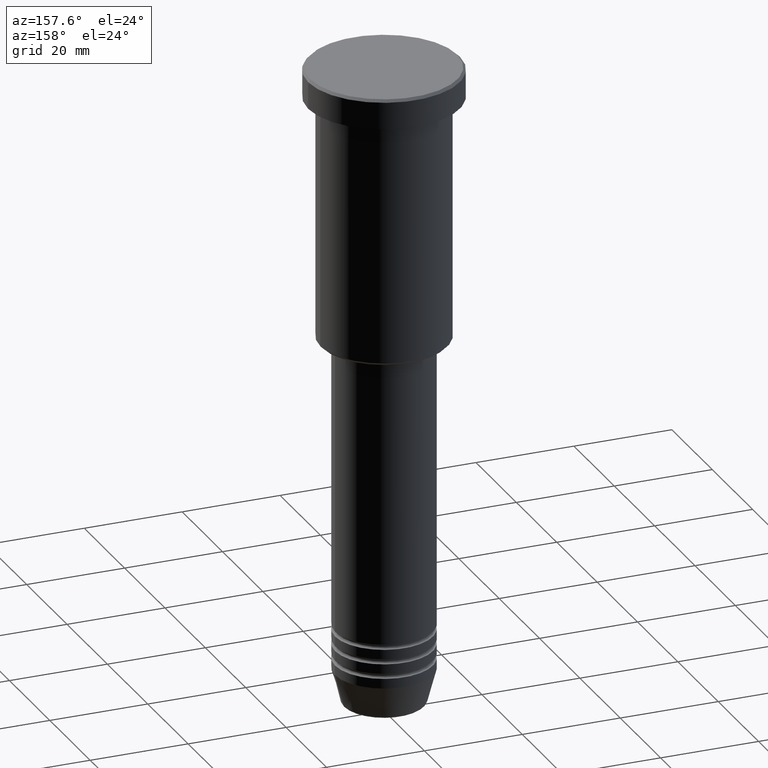
[diagram: clean part render]
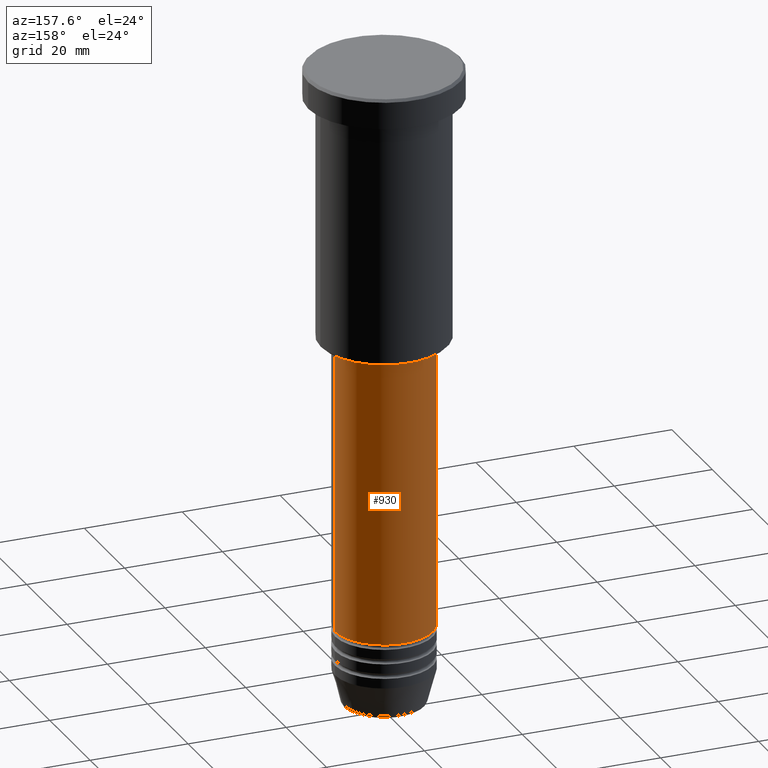
[diagram: same view with one face highlighted and labeled with its STEP entity id]
A machine part, auxiliary view. The second image highlights one B-rep face of the part: STEP entity #930.
In plain terms, the highlighted cylindrical surface (partial cylindrical patch) has radius 10 mm, axis along (-0, -0, 1).
Its self-contained STEP definition (entity closure, byte-faithful):
#14 = CARTESIAN_POINT ( 'NONE',  ( -10.00000000000000000, 1.224646799147353256E-15, -57.00000000000000000 ) ) ;
#30 = DIRECTION ( 'NONE',  ( -0.000000000000000000, -0.000000000000000000, 1.000000000000000000 ) ) ;
#85 = LINE ( 'NONE', #193, #888 ) ;
#107 = DIRECTION ( 'NONE',  ( 1.000000000000000000, 0.000000000000000000, 0.000000000000000000 ) ) ;
#117 = ORIENTED_EDGE ( 'NONE', *, *, #957, .F. ) ;
#124 = EDGE_LOOP ( 'NONE', ( #303, #361, #117, #487 ) ) ;
#193 = CARTESIAN_POINT ( 'NONE',  ( -10.00000000000000000, 1.224646799147353256E-15, 0.000000000000000000 ) ) ;
#198 = EDGE_CURVE ( 'NONE', #518, #300, #901, .T. ) ;
#204 = CYLINDRICAL_SURFACE ( 'NONE', #388, 10.00000000000000000 ) ;
#235 = VERTEX_POINT ( 'NONE', #14 ) ;
#294 = CARTESIAN_POINT ( 'NONE',  ( 0.000000000000000000, 0.000000000000000000, -114.9999999999999574 ) ) ;
#300 = VERTEX_POINT ( 'NONE', #591 ) ;
#303 = ORIENTED_EDGE ( 'NONE', *, *, #198, .T. ) ;
#307 = CIRCLE ( 'NONE', #767, 10.00000000000000000 ) ;
#348 = CARTESIAN_POINT ( 'NONE',  ( 10.00000000000000000, 0.000000000000000000, -114.9999999999999574 ) ) ;
#361 = ORIENTED_EDGE ( 'NONE', *, *, #1152, .T. ) ;
#388 = AXIS2_PLACEMENT_3D ( 'NONE', #1055, #397, #413 ) ;
#397 = DIRECTION ( 'NONE',  ( -0.000000000000000000, -0.000000000000000000, 1.000000000000000000 ) ) ;
#413 = DIRECTION ( 'NONE',  ( 1.000000000000000000, 0.000000000000000000, 0.000000000000000000 ) ) ;
#442 = DIRECTION ( 'NONE',  ( -0.000000000000000000, -0.000000000000000000, 1.000000000000000000 ) ) ;
#487 = ORIENTED_EDGE ( 'NONE', *, *, #1048, .F. ) ;
#494 = DIRECTION ( 'NONE',  ( -0.000000000000000000, -0.000000000000000000, 1.000000000000000000 ) ) ;
#518 = VERTEX_POINT ( 'NONE', #348 ) ;
#530 = CARTESIAN_POINT ( 'NONE',  ( 10.00000000000000000, 0.000000000000000000, -57.00000000000000000 ) ) ;
#543 = VERTEX_POINT ( 'NONE', #530 ) ;
#583 = LINE ( 'NONE', #843, #1103 ) ;
#591 = CARTESIAN_POINT ( 'NONE',  ( -10.00000000000000000, 1.224646799147353256E-15, -114.9999999999999574 ) ) ;
#758 = FACE_OUTER_BOUND ( 'NONE', #124, .T. ) ;
#767 = AXIS2_PLACEMENT_3D ( 'NONE', #1049, #494, #1121 ) ;
#832 = DIRECTION ( 'NONE',  ( -0.000000000000000000, -0.000000000000000000, 1.000000000000000000 ) ) ;
#843 = CARTESIAN_POINT ( 'NONE',  ( 10.00000000000000000, 0.000000000000000000, 0.000000000000000000 ) ) ;
#888 = VECTOR ( 'NONE', #442, 1000.000000000000000 ) ;
#901 = CIRCLE ( 'NONE', #1134, 10.00000000000000000 ) ;
#930 = ADVANCED_FACE ( 'NONE', ( #758 ), #204, .T. ) ;
#957 = EDGE_CURVE ( 'NONE', #543, #235, #307, .T. ) ;
#1048 = EDGE_CURVE ( 'NONE', #518, #543, #583, .T. ) ;
#1049 = CARTESIAN_POINT ( 'NONE',  ( 0.000000000000000000, 0.000000000000000000, -57.00000000000000000 ) ) ;
#1055 = CARTESIAN_POINT ( 'NONE',  ( 0.000000000000000000, 0.000000000000000000, 0.000000000000000000 ) ) ;
#1103 = VECTOR ( 'NONE', #30, 1000.000000000000000 ) ;
#1121 = DIRECTION ( 'NONE',  ( 1.000000000000000000, 0.000000000000000000, 0.000000000000000000 ) ) ;
#1134 = AXIS2_PLACEMENT_3D ( 'NONE', #294, #832, #107 ) ;
#1152 = EDGE_CURVE ( 'NONE', #300, #235, #85, .T. ) ;